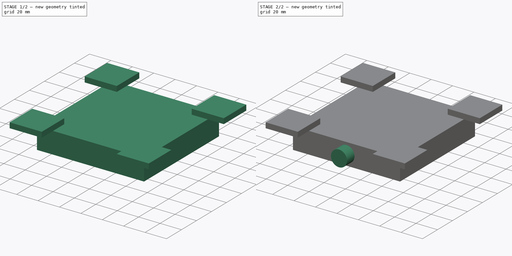
[diagram: build sequence overview — one tinted view per stage of 2, left to right]
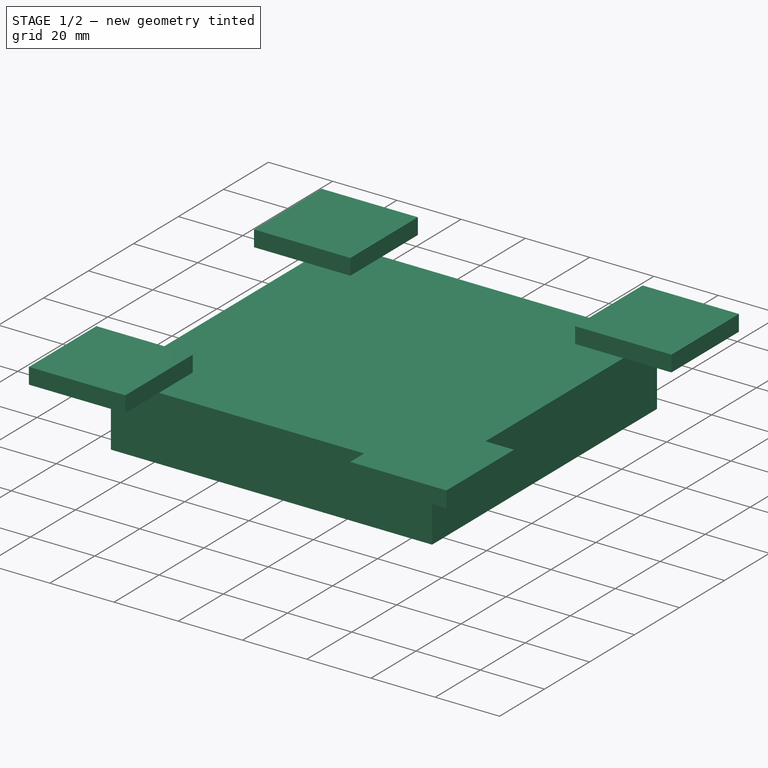
[diagram: stage 1 of 2 — iso view after this stage's code; geometry added in this stage tinted green]
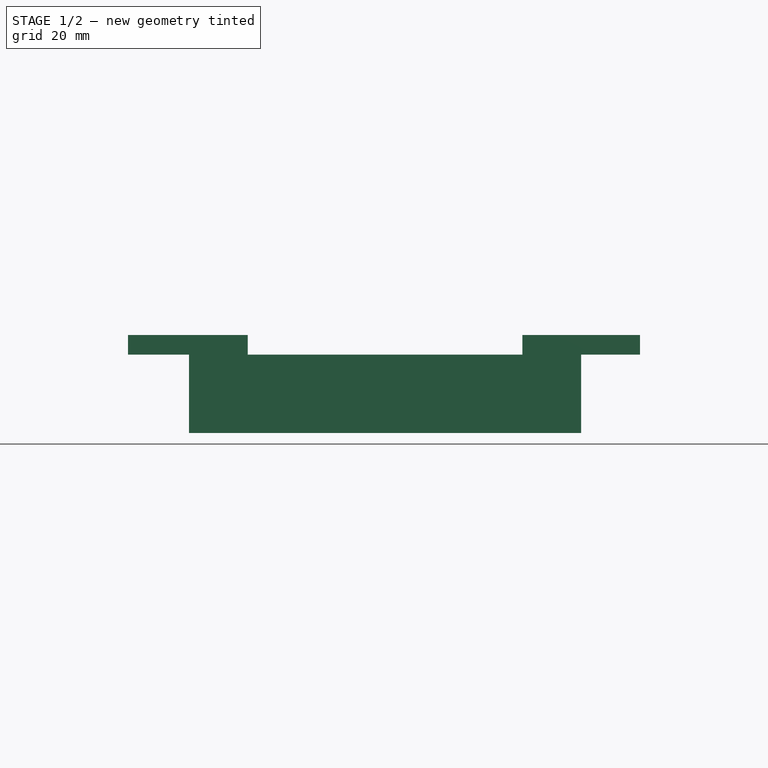
[diagram: stage 1 of 2 — front view after this stage's code; geometry added in this stage tinted green]
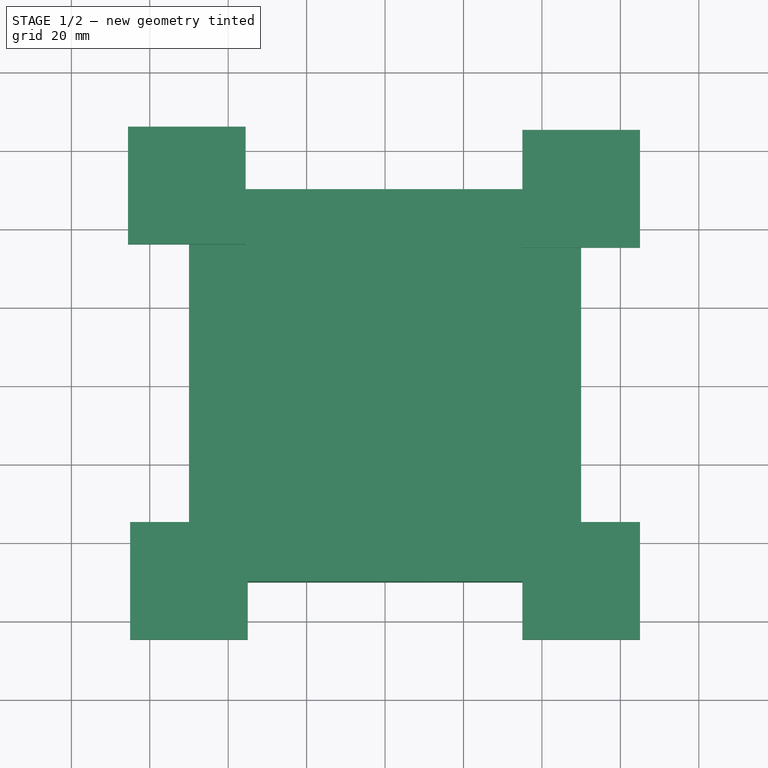
[diagram: stage 1 of 2 — top view after this stage's code; geometry added in this stage tinted green]
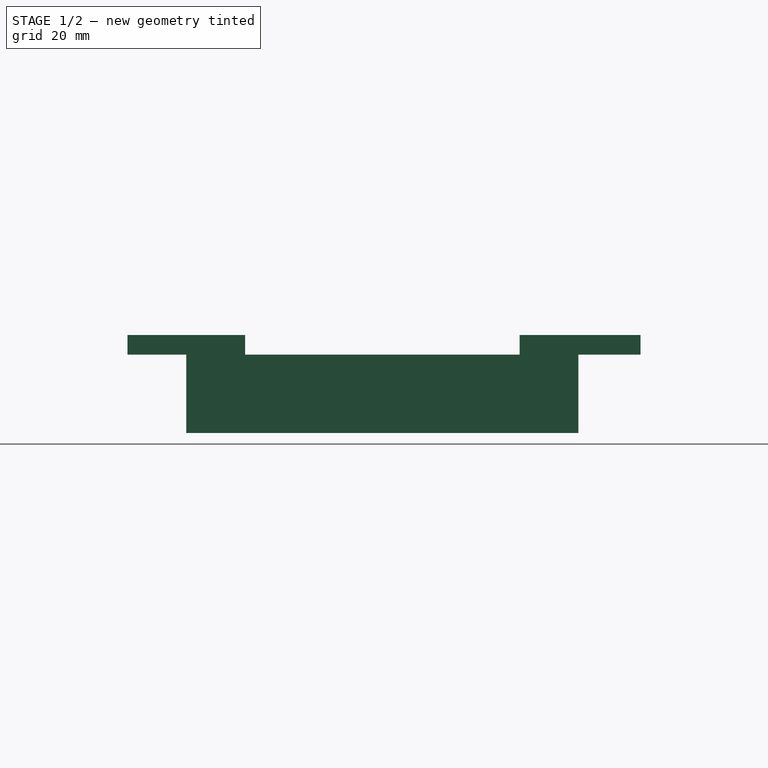
[diagram: stage 1 of 2 — right view after this stage's code; geometry added in this stage tinted green]
FCSTD DOCUMENT  (FreeCAD 1.0R39319 (Git))
Label: Unnamed
License: All rights reserved
LicenseURL: https://en.wikipedia.org/wiki/All_rights_reserved
objects: Sketcher::SketchObject×3, PartDesign::Pad×3, PartDesign::Body×2
note: 17 computed .brp shape members not serialized (recipe doc carries the construction recipe); baked Part::Feature solids carry a one-line shape summary decoded from their .brp

FEATURE [PartDesign::Body] Body
  AllowCompound = false
  Origin = -> Origin
FEATURE [Sketcher::SketchObject] Sketch
  ArcFitTolerance = 1e-06
  AttachmentSupport = -> [XY_Plane001]
  FullyConstrained = true
  MakeInternals = false
  MapMode = 5
  sketch-geometry (5):
    g0: LineSegment StartX=-50 StartY=-50 StartZ=0 EndX=50 EndY=-50 EndZ=0
    g1: LineSegment StartX=50 StartY=-50 StartZ=0 EndX=50 EndY=50 EndZ=0
    g2: LineSegment StartX=50 StartY=50 StartZ=0 EndX=-50 EndY=50 EndZ=0
    g3: LineSegment StartX=-50 StartY=50 StartZ=0 EndX=-50 EndY=-50 EndZ=0
    g4: GeomPoint [constr] X=0 Y=0 Z=0
  constraints (12):
    c: Coincident(g0,g1)
    c: Coincident(g1,g2)
    c: Coincident(g2,g3)
    c: Coincident(g3,g0)
    c: Horizontal(g0)
    c: Horizontal(g2)
    c: Vertical(g1)
    c: Vertical(g3)
    c: Symmetric(g2,g0,g4)
    c: Distance(g1,g3) = 100
    c: Distance(g0,g2) = 100
    c: Coincident(g4,g-1)
FEATURE [PartDesign::Pad] Pad
  Direction = (0,0,1)
  Length = 20
  Length2 = 10
  Profile = -> Sketch
  ReferenceAxis = -> Sketch [N_Axis]
  Refine = true
  Suppressed = false
  Type = 0
FEATURE [Sketcher::SketchObject] Sketch001
  ArcFitTolerance = 1e-06
  AttachmentSupport = -> [Pad]
  ExternalGeometry = -> [Pad]
  FullyConstrained = false
  MakeInternals = false
  MapMode = 5
  Placement = pos=(0,0,20) rot=(0,0,1;0rad)
  sketch-geometry (20):
    g0: LineSegment StartX=-65.5438 StartY=35.8451 StartZ=0 EndX=-35.5438 EndY=35.8451 EndZ=0
    g1: LineSegment StartX=-35.5438 StartY=35.8451 StartZ=0 EndX=-35.5438 EndY=65.8451 EndZ=0
    g2: LineSegment StartX=-35.5438 StartY=65.8451 StartZ=0 EndX=-65.5438 EndY=65.8451 EndZ=0
    g3: LineSegment StartX=-65.5438 StartY=65.8451 StartZ=0 EndX=-65.5438 EndY=35.8451 EndZ=0
    g4: GeomPoint [constr] X=-50.5438 Y=50.8451 Z=0
    g5: LineSegment StartX=-65 StartY=-65 StartZ=0 EndX=-35 EndY=-65 EndZ=0
    g6: LineSegment StartX=-35 StartY=-65 StartZ=0 EndX=-35 EndY=-35 EndZ=0
    g7: LineSegment StartX=-35 StartY=-35 StartZ=0 EndX=-65 EndY=-35 EndZ=0
    g8: LineSegment StartX=-65 StartY=-35 StartZ=0 EndX=-65 EndY=-65 EndZ=0
    g9: GeomPoint [constr] X=-50 Y=-50 Z=0
    g10: LineSegment StartX=35 StartY=-65 StartZ=0 EndX=65 EndY=-65 EndZ=0
    g11: LineSegment StartX=65 StartY=-65 StartZ=0 EndX=65 EndY=-35 EndZ=0
    g12: LineSegment StartX=65 StartY=-35 StartZ=0 EndX=35 EndY=-35 EndZ=0
    g13: LineSegment StartX=35 StartY=-35 StartZ=0 EndX=35 EndY=-65 EndZ=0
    g14: GeomPoint [constr] X=50 Y=-50 Z=0
    g15: LineSegment StartX=35 StartY=35 StartZ=0 EndX=65 EndY=35 EndZ=0
    g16: LineSegment StartX=65 StartY=35 StartZ=0 EndX=65 EndY=65 EndZ=0
    g17: LineSegment StartX=65 StartY=65 StartZ=0 EndX=35 EndY=65 EndZ=0
    g18: LineSegment StartX=35 StartY=65 StartZ=0 EndX=35 EndY=35 EndZ=0
    g19: GeomPoint [constr] X=50 Y=50 Z=0
  constraints (47):
    c: Coincident(g0,g1)
    c: Coincident(g1,g2)
    c: Coincident(g2,g3)
    c: Coincident(g3,g0)
    c: Horizontal(g0)
    c: Horizontal(g2)
    c: Vertical(g1)
    c: Vertical(g3)
    c: Symmetric(g2,g0,g4)
    c: Distance(g1,g3) = 30
    c: Distance(g0,g2) = 30
    c: Coincident(g5,g6)
    c: Coincident(g6,g7)
    c: Coincident(g7,g8)
    c: Coincident(g8,g5)
    c: Horizontal(g5)
    c: Horizontal(g7)
    c: Vertical(g6)
    c: Vertical(g8)
    c: Symmetric(g7,g5,g9)
    c: Distance(g6,g8) = 30
    c: Distance(g5,g7) = 30
    c: Coincident(g9,g-6)
    c: Coincident(g10,g11)
    c: Coincident(g11,g12)
    c: Coincident(g12,g13)
    c: Coincident(g13,g10)
    c: Horizontal(g10)
    c: Horizontal(g12)
    c: Vertical(g11)
    c: Vertical(g13)
    c: Symmetric(g12,g10,g14)
    c: Distance(g11,g13) = 30
    c: Distance(g10,g12) = 30
    c: Coincident(g14,g-5)
    c: Coincident(g15,g16)
    c: Coincident(g16,g17)
    c: Coincident(g17,g18)
    c: Coincident(g18,g15)
    c: Horizontal(g15)
    c: Horizontal(g17)
    c: Vertical(g16)
    c: Vertical(g18)
    c: Symmetric(g17,g15,g19)
    c: Distance(g16,g18) = 30
    c: Distance(g15,g17) = 30
    c: Coincident(g19,g-4)
FEATURE [PartDesign::Pad] Pad001
  BaseFeature = -> Pad
  Direction = (0,0,1)
  Length = 5
  Length2 = 10
  Profile = -> Sketch001
  ReferenceAxis = -> Sketch001 [N_Axis]
  Refine = true
  Suppressed = false
  Type = 0
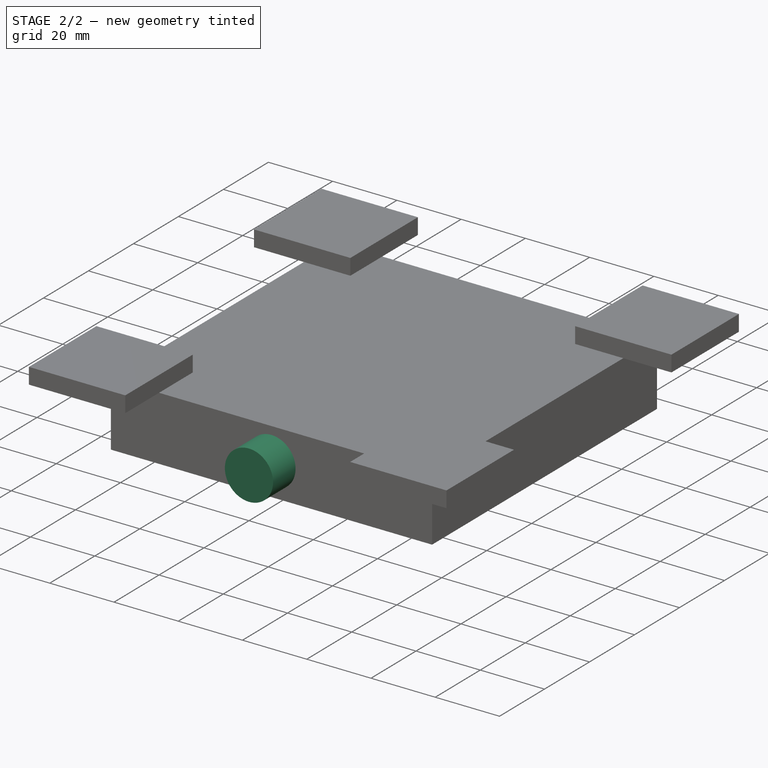
[diagram: stage 2 of 2 — iso view after this stage's code; geometry added in this stage tinted green]
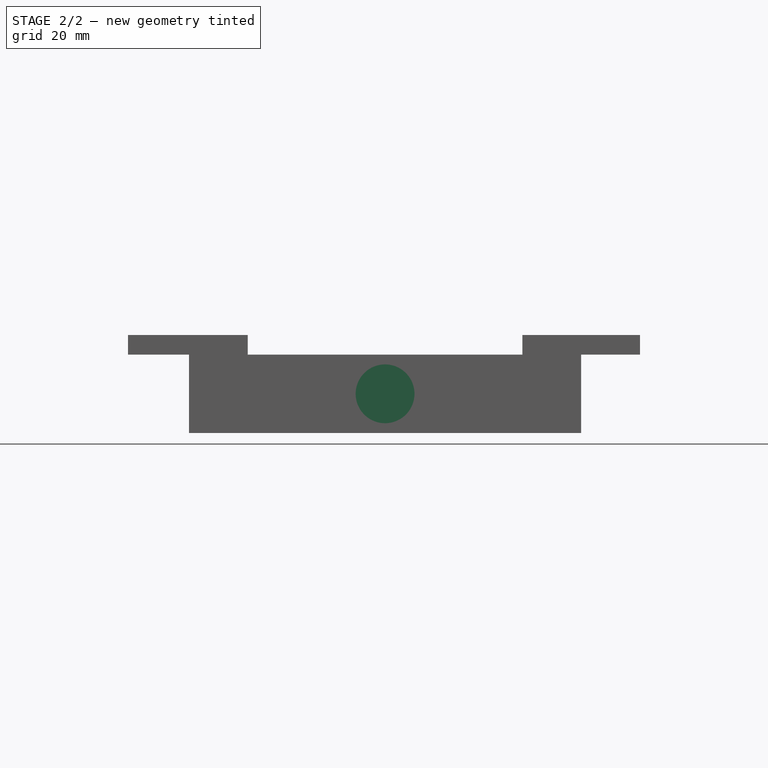
[diagram: stage 2 of 2 — front view after this stage's code; geometry added in this stage tinted green]
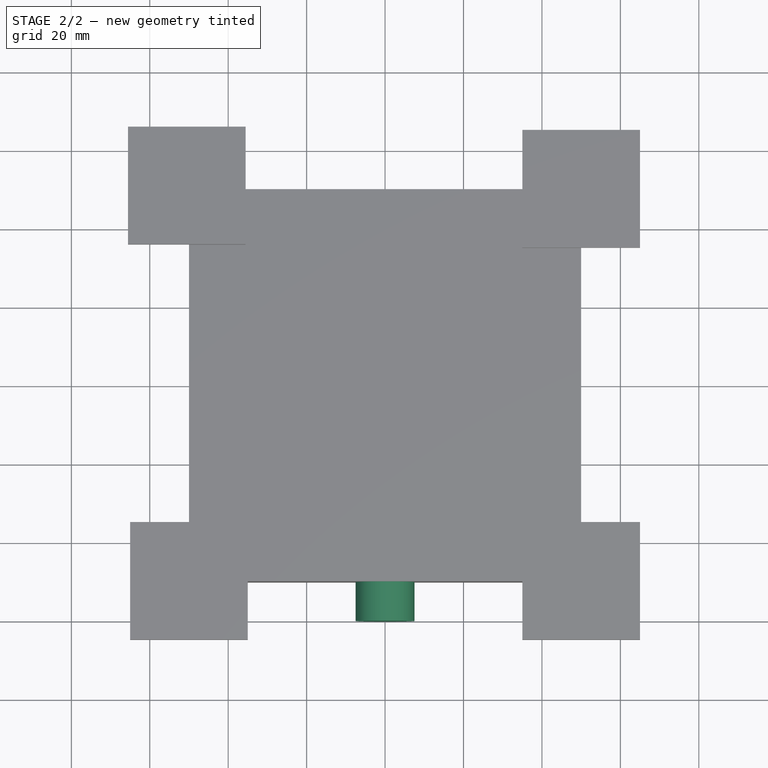
[diagram: stage 2 of 2 — top view after this stage's code; geometry added in this stage tinted green]
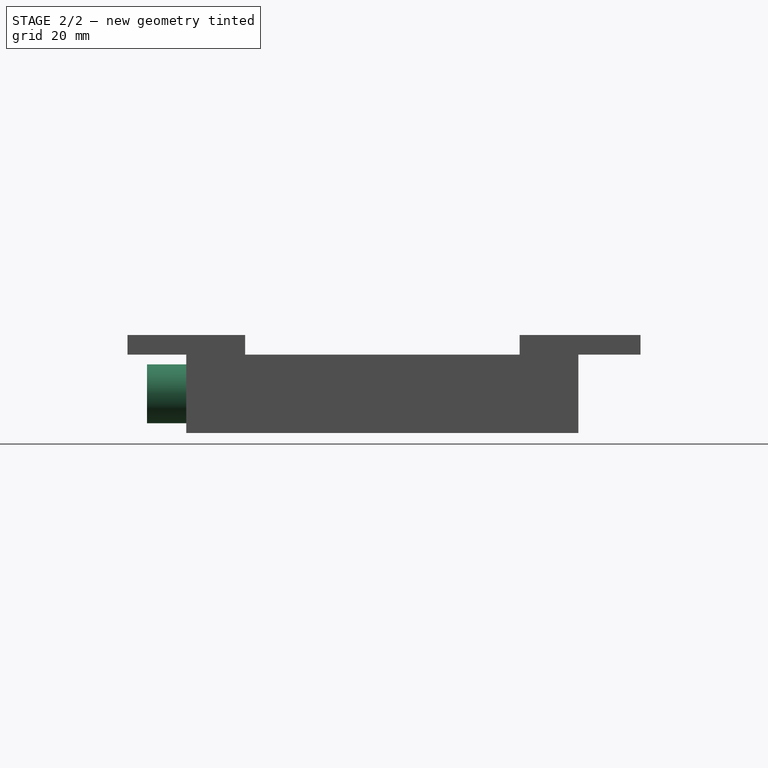
[diagram: stage 2 of 2 — right view after this stage's code; geometry added in this stage tinted green]
FEATURE [Sketcher::SketchObject] Sketch002
  ArcFitTolerance = 1e-06
  AttachmentSupport = -> [Pad001]
  ExternalGeometry = -> [Pad001]
  FullyConstrained = true
  MakeInternals = false
  MapMode = 5
  Placement = pos=(0,-50,0) rot=(1,0,0;1.5708rad)
  sketch-geometry (3):
    g0: LineSegment [constr] StartX=-50 StartY=0 StartZ=0 EndX=50 EndY=20 EndZ=0
    g1: GeomPoint [constr] X=0 Y=10 Z=0
    g2: Circle CenterX=0 CenterY=10 CenterZ=0 NormalX=0 NormalY=0 NormalZ=1 AngleXU=0 Radius=7.5
  constraints (5):
    c: Coincident(g0,g-5)
    c: Coincident(g0,g-4)
    c: Symmetric(g0,g0,g1)
    c: Coincident(g2,g1)
    c: Diameter(g2) = 15
FEATURE [PartDesign::Pad] Pad002
  BaseFeature = -> Pad001
  Direction = (0,-1,2e-16)
  Length = 10
  Length2 = 10
  Profile = -> Sketch002
  ReferenceAxis = -> Sketch002 [N_Axis]
  Refine = true
  Suppressed = false
  Type = 0
FEATURE [PartDesign::Body] Body001
  AllowCompound = false
  Group = -> [Sketch,Pad,Sketch001,Pad001,Sketch002,Pad002]
  Origin = -> Origin001
  Tip = -> Pad002
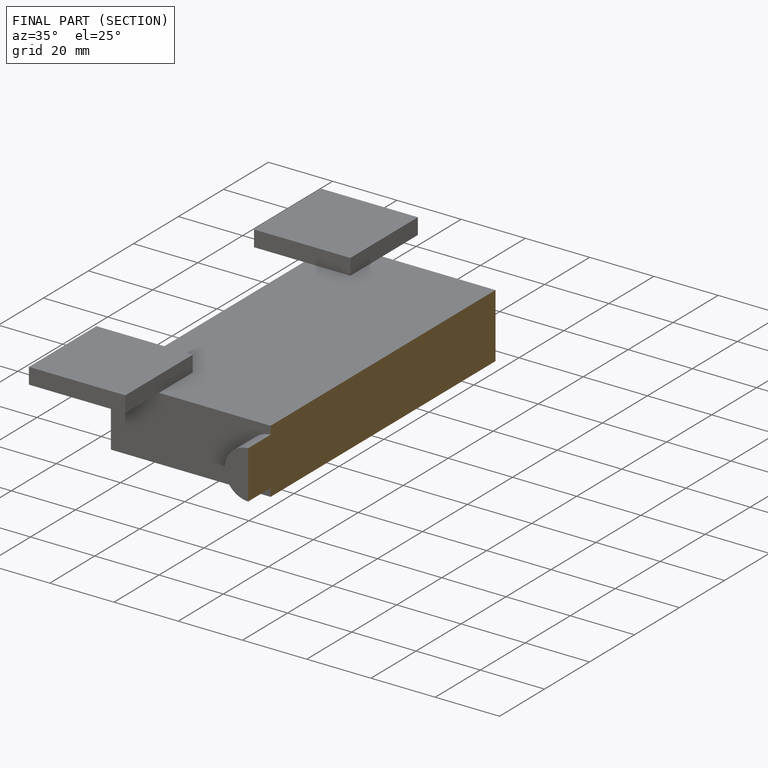
[diagram: finished part — half-section view (interior)]
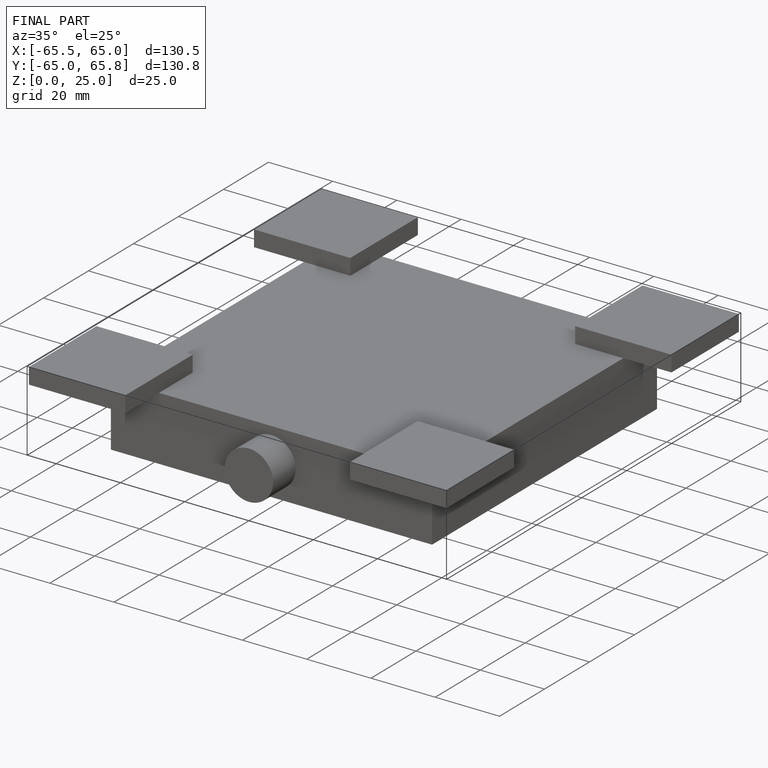
[diagram: finished part — iso view with bounding-box wireframe]
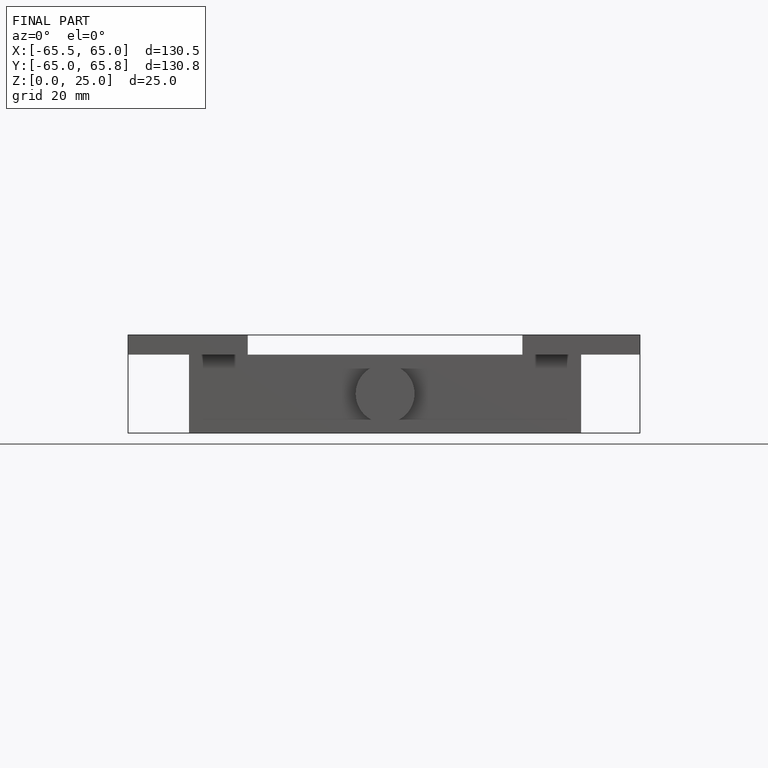
[diagram: finished part — front view with bounding-box wireframe]
